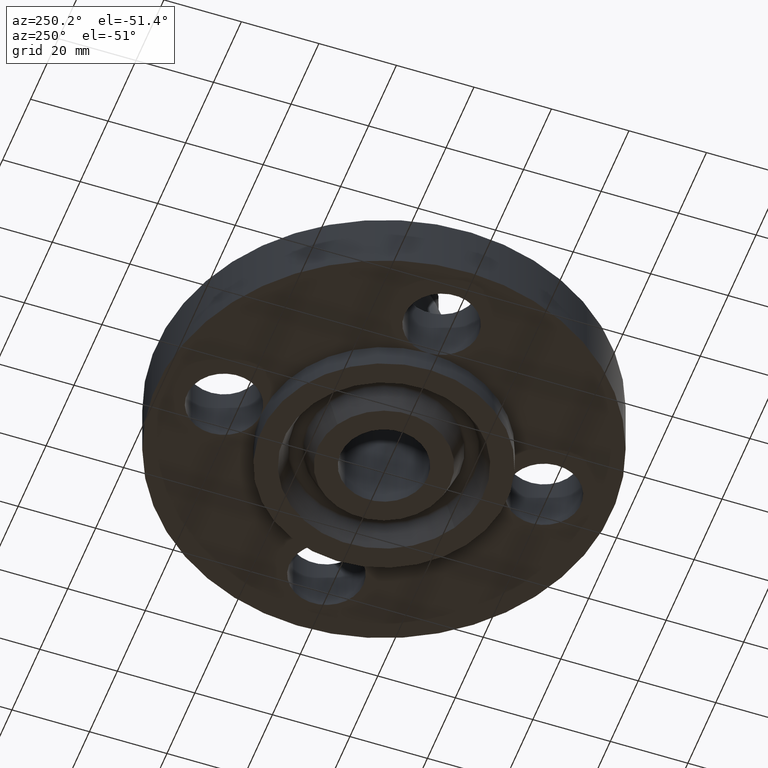
[diagram: clean part render]
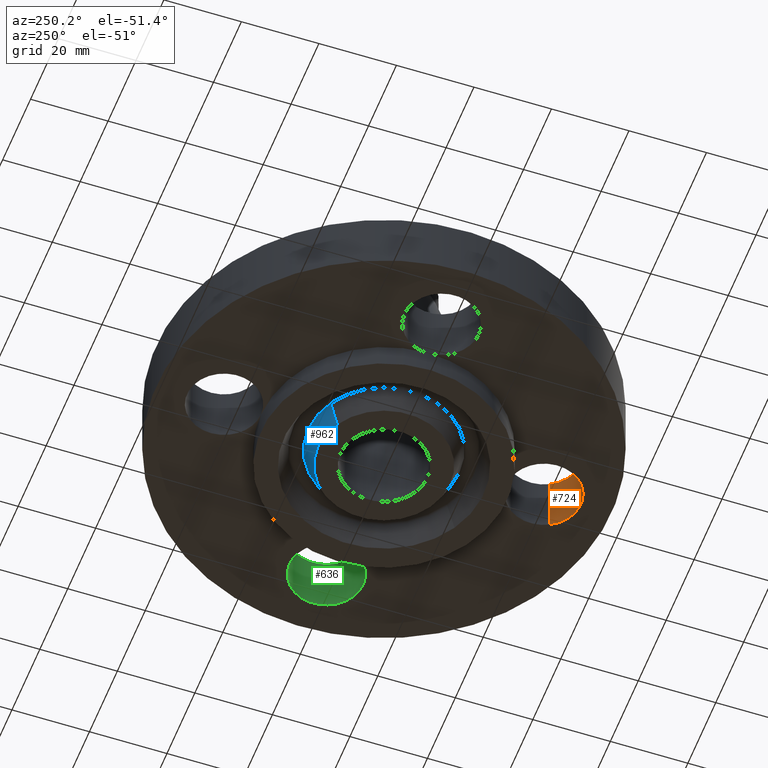
[diagram: same view with three faces highlighted in distinct colors, each labeled with its STEP entity id]
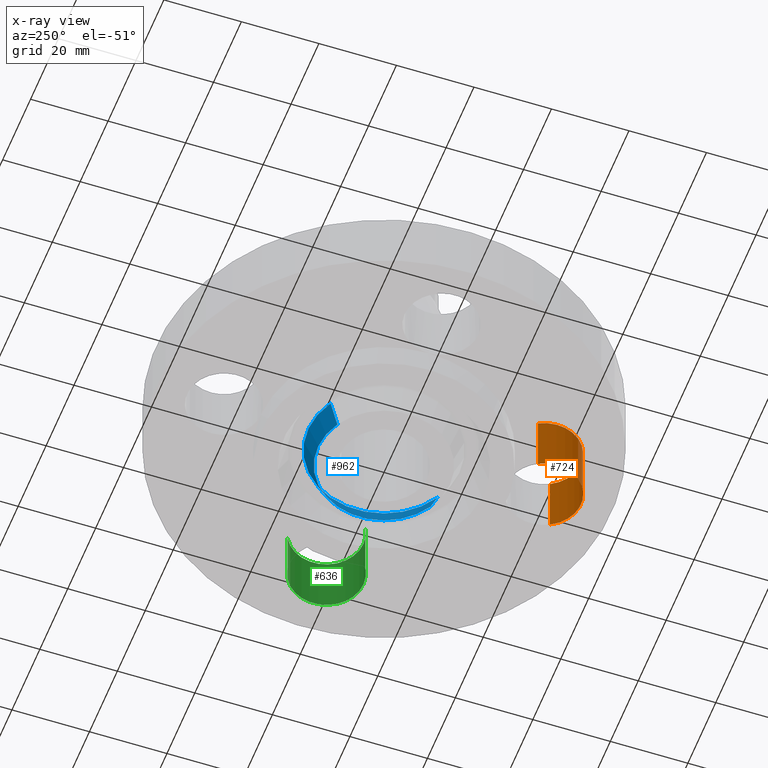
[diagram: x-ray of the same camera — body ghosted, the three highlighted faces saturated]
A machine part, auxiliary view with three faces highlighted in distinct colors.
The next image is the same camera in x-ray (body ghosted, the three faces saturated) — at least one of them is partly hidden behind the body in this view.
Their STEP definitions:

[orange] entity #724 — the highlighted cylindrical surface (partial cylindrical patch) has radius 9.525 mm, axis along (-0, 0, -1).
#537=AXIS2_PLACEMENT_3D('Circle Axis2P3D',#535,#536,$) ;
#697=AXIS2_PLACEMENT_3D('Cylinder Axis2P3D',#694,#695,#696) ;
#715=AXIS2_PLACEMENT_3D('Circle Axis2P3D',#713,#714,$) ;
#532=CARTESIAN_POINT('Vertex',(-0.32909346071,-1.44521542303,0.)) ;
#535=CARTESIAN_POINT('Axis2P3D Location',(1.39870617276E-016,-1.62500000001,0.)) ;
#539=CARTESIAN_POINT('Vertex',(0.32909346071,-1.80478457698,0.)) ;
#694=CARTESIAN_POINT('Axis2P3D Location',(1.99005104862E-016,-1.62500000001,0.616062992128)) ;
#699=CARTESIAN_POINT('Line Origine',(0.32909346071,-1.80478457698,0.310000000001)) ;
#703=CARTESIAN_POINT('Vertex',(0.32909346071,-1.80478457698,0.620000000002)) ;
#706=CARTESIAN_POINT('Line Origine',(-0.32909346071,-1.44521542303,0.310000000001)) ;
#710=CARTESIAN_POINT('Vertex',(-0.32909346071,-1.44521542303,0.620000000002)) ;
#713=CARTESIAN_POINT('Axis2P3D Location',(1.99005104862E-016,-1.62500000001,0.620000000002)) ;
#536=DIRECTION('Axis2P3D Direction',(0.,0.,-0.0393700787402)) ;
#695=DIRECTION('Axis2P3D Direction',(-0.,0.,-0.0393700787402)) ;
#696=DIRECTION('Axis2P3D XDirection',(-0.0345504945626,0.0188750212049,0.)) ;
#700=DIRECTION('Vector Direction',(0.,0.,-0.0393700787402)) ;
#707=DIRECTION('Vector Direction',(0.,0.,-0.0393700787402)) ;
#714=DIRECTION('Axis2P3D Direction',(-0.,0.,-0.0393700787402)) ;
#701=VECTOR('Line Direction',#700,0.0393700787402) ;
#708=VECTOR('Line Direction',#707,0.0393700787402) ;
#719=ORIENTED_EDGE('',*,*,#705,.F.) ;
#720=ORIENTED_EDGE('',*,*,#541,.T.) ;
#721=ORIENTED_EDGE('',*,*,#712,.T.) ;
#722=ORIENTED_EDGE('',*,*,#717,.F.) ;
#724=ADVANCED_FACE('PartBody',(#723),#698,.F.) ;
#538=CIRCLE('generated circle',#537,0.375000000001) ;
#716=CIRCLE('generated circle',#715,0.375000000001) ;
#698=CYLINDRICAL_SURFACE('generated cylinder',#697,0.375000000001) ;
#541=EDGE_CURVE('',#540,#533,#538,.T.) ;
#705=EDGE_CURVE('',#540,#704,#702,.F.) ;
#712=EDGE_CURVE('',#533,#711,#709,.F.) ;
#717=EDGE_CURVE('',#704,#711,#716,.T.) ;
#718=EDGE_LOOP('',(#719,#720,#721,#722)) ;
#723=FACE_OUTER_BOUND('',#718,.T.) ;
#702=LINE('Line',#699,#701) ;
#709=LINE('Line',#706,#708) ;
#533=VERTEX_POINT('',#532) ;
#540=VERTEX_POINT('',#539) ;
#704=VERTEX_POINT('',#703) ;
#711=VERTEX_POINT('',#710) ;

[blue] entity #962 — the highlighted conical surface has half-angle 23 deg.
#768=AXIS2_PLACEMENT_3D('Circle Axis2P3D',#766,#767,$) ;
#912=AXIS2_PLACEMENT_3D('Circle Axis2P3D',#910,#911,$) ;
#944=AXIS2_PLACEMENT_3D('Cone Axis2P3D',#941,#942,#943) ;
#766=CARTESIAN_POINT('Axis2P3D Location',(2.09805925913E-016,0.,-0.250000000001)) ;
#770=CARTESIAN_POINT('Vertex',(-0.322173961943,0.589735481593,-0.250000000001)) ;
#772=CARTESIAN_POINT('Vertex',(0.322173961943,-0.589735481593,-0.250000000001)) ;
#907=CARTESIAN_POINT('Vertex',(0.369206329292,-0.675827652547,-0.0188873350169)) ;
#910=CARTESIAN_POINT('Axis2P3D Location',(0.,0.,-0.0188873350169)) ;
#914=CARTESIAN_POINT('Vertex',(-0.369206329292,0.675827652547,-0.0188873350169)) ;
#941=CARTESIAN_POINT('Axis2P3D Location',(0.,0.,-0.310000000001)) ;
#946=CARTESIAN_POINT('Line Origine',(-0.345690145618,0.63278156707,-0.134443667509)) ;
#951=CARTESIAN_POINT('Line Origine',(0.345690145618,-0.63278156707,-0.134443667509)) ;
#767=DIRECTION('Axis2P3D Direction',(0.,0.,-0.0393700787402)) ;
#911=DIRECTION('Axis2P3D Direction',(0.,0.,0.0393700787402)) ;
#942=DIRECTION('Axis2P3D Direction',(0.,0.,0.0393700787402)) ;
#943=DIRECTION('Axis2P3D XDirection',(-0.0188750212049,0.0345504945626,0.)) ;
#947=DIRECTION('Vector Direction',(-0.00737505833565,0.0134999537303,0.0362403485611)) ;
#952=DIRECTION('Vector Direction',(0.00737505833565,-0.0134999537303,0.0362403485611)) ;
#948=VECTOR('Line Direction',#947,0.0393700787402) ;
#953=VECTOR('Line Direction',#952,0.0393700787402) ;
#957=ORIENTED_EDGE('',*,*,#950,.F.) ;
#958=ORIENTED_EDGE('',*,*,#916,.F.) ;
#959=ORIENTED_EDGE('',*,*,#955,.T.) ;
#960=ORIENTED_EDGE('',*,*,#774,.F.) ;
#962=ADVANCED_FACE('PartBody',(#961),#945,.T.) ;
#769=CIRCLE('generated circle',#768,0.672000000003) ;
#913=CIRCLE('generated circle',#912,0.770101505996) ;
#945=CONICAL_SURFACE('Cone',#944,0.64653151103,0.401425727959) ;
#774=EDGE_CURVE('',#771,#773,#769,.T.) ;
#916=EDGE_CURVE('',#908,#915,#913,.T.) ;
#950=EDGE_CURVE('',#915,#771,#949,.F.) ;
#955=EDGE_CURVE('',#908,#773,#954,.F.) ;
#956=EDGE_LOOP('',(#957,#958,#959,#960)) ;
#961=FACE_OUTER_BOUND('',#956,.T.) ;
#949=LINE('Line',#946,#948) ;
#954=LINE('Line',#951,#953) ;
#771=VERTEX_POINT('',#770) ;
#773=VERTEX_POINT('',#772) ;
#908=VERTEX_POINT('',#907) ;
#915=VERTEX_POINT('',#914) ;

[green] entity #636 — the highlighted cylindrical surface (partial cylindrical patch) has radius 9.525 mm, axis along (0, -0, -1).
#556=AXIS2_PLACEMENT_3D('Circle Axis2P3D',#554,#555,$) ;
#609=AXIS2_PLACEMENT_3D('Cylinder Axis2P3D',#606,#607,#608) ;
#627=AXIS2_PLACEMENT_3D('Circle Axis2P3D',#625,#626,$) ;
#551=CARTESIAN_POINT('Vertex',(1.44521542303,-0.32909346071,0.)) ;
#554=CARTESIAN_POINT('Axis2P3D Location',(1.62500000001,-1.39870617276E-016,0.)) ;
#558=CARTESIAN_POINT('Vertex',(1.80478457698,0.32909346071,0.)) ;
#606=CARTESIAN_POINT('Axis2P3D Location',(1.62500000001,-1.8023868212E-016,0.616062992128)) ;
#611=CARTESIAN_POINT('Line Origine',(1.80478457698,0.32909346071,0.310000000001)) ;
#615=CARTESIAN_POINT('Vertex',(1.80478457698,0.32909346071,0.620000000002)) ;
#618=CARTESIAN_POINT('Line Origine',(1.44521542303,-0.32909346071,0.310000000001)) ;
#622=CARTESIAN_POINT('Vertex',(1.44521542303,-0.32909346071,0.620000000002)) ;
#625=CARTESIAN_POINT('Axis2P3D Location',(1.62500000001,-1.8023868212E-016,0.620000000002)) ;
#555=DIRECTION('Axis2P3D Direction',(0.,0.,-0.0393700787402)) ;
#607=DIRECTION('Axis2P3D Direction',(0.,-0.,-0.0393700787402)) ;
#608=DIRECTION('Axis2P3D XDirection',(-0.0188750212049,-0.0345504945626,0.)) ;
#612=DIRECTION('Vector Direction',(0.,0.,-0.0393700787402)) ;
#619=DIRECTION('Vector Direction',(0.,0.,-0.0393700787402)) ;
#626=DIRECTION('Axis2P3D Direction',(0.,-0.,-0.0393700787402)) ;
#613=VECTOR('Line Direction',#612,0.0393700787402) ;
#620=VECTOR('Line Direction',#619,0.0393700787402) ;
#631=ORIENTED_EDGE('',*,*,#617,.F.) ;
#632=ORIENTED_EDGE('',*,*,#560,.T.) ;
#633=ORIENTED_EDGE('',*,*,#624,.T.) ;
#634=ORIENTED_EDGE('',*,*,#629,.F.) ;
#636=ADVANCED_FACE('PartBody',(#635),#610,.F.) ;
#557=CIRCLE('generated circle',#556,0.375000000001) ;
#628=CIRCLE('generated circle',#627,0.375000000001) ;
#610=CYLINDRICAL_SURFACE('generated cylinder',#609,0.375000000001) ;
#560=EDGE_CURVE('',#559,#552,#557,.T.) ;
#617=EDGE_CURVE('',#559,#616,#614,.F.) ;
#624=EDGE_CURVE('',#552,#623,#621,.F.) ;
#629=EDGE_CURVE('',#616,#623,#628,.T.) ;
#630=EDGE_LOOP('',(#631,#632,#633,#634)) ;
#635=FACE_OUTER_BOUND('',#630,.T.) ;
#614=LINE('Line',#611,#613) ;
#621=LINE('Line',#618,#620) ;
#552=VERTEX_POINT('',#551) ;
#559=VERTEX_POINT('',#558) ;
#616=VERTEX_POINT('',#615) ;
#623=VERTEX_POINT('',#622) ;